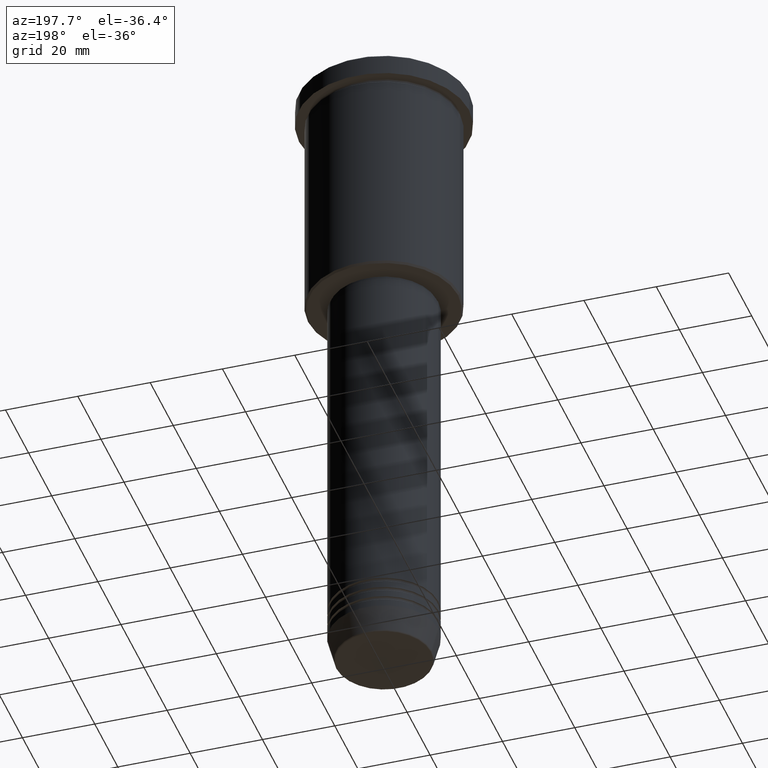
[diagram: clean part render]
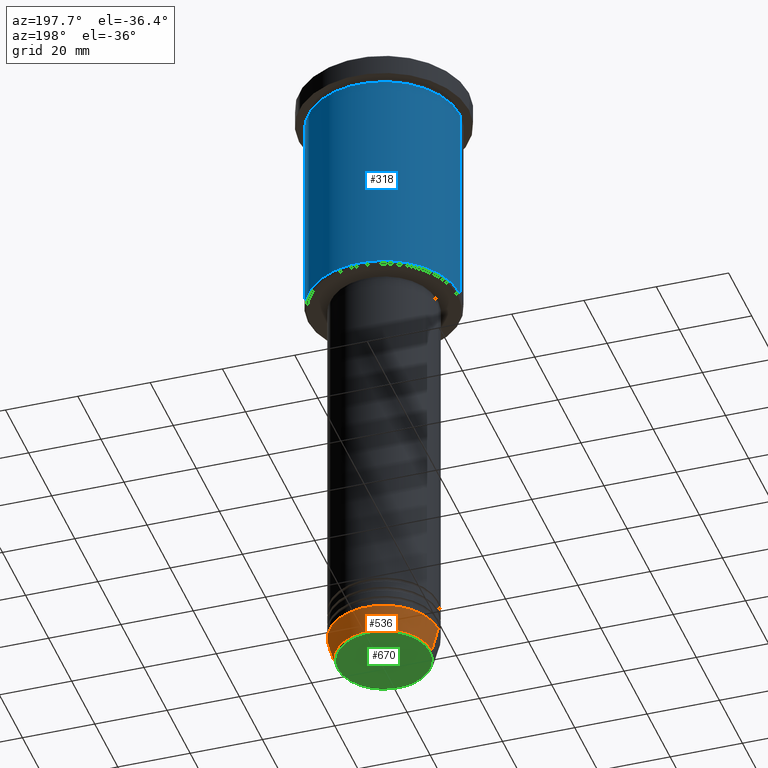
[diagram: same view with three faces highlighted in distinct colors, each labeled with its STEP entity id]
A machine part, auxiliary view with three faces highlighted in distinct colors.
Their STEP definitions:

[orange] entity #536 — the highlighted conical surface has half-angle 15 deg.
#16 = FACE_OUTER_BOUND ( 'NONE', #603, .T. ) ;
#58 = CIRCLE ( 'NONE', #98, 13.22365507213720370 ) ;
#98 = AXIS2_PLACEMENT_3D ( 'NONE', #185, #826, #1093 ) ;
#101 = LINE ( 'NONE', #389, #1067 ) ;
#185 = CARTESIAN_POINT ( 'NONE',  ( 0.000000000000000000, 0.000000000000000000, -180.6294095225512422 ) ) ;
#240 = VERTEX_POINT ( 'NONE', #1046 ) ;
#290 = EDGE_CURVE ( 'NONE', #240, #743, #542, .T. ) ;
#312 = VERTEX_POINT ( 'NONE', #817 ) ;
#325 = AXIS2_PLACEMENT_3D ( 'NONE', #439, #356, #898 ) ;
#356 = DIRECTION ( 'NONE',  ( -0.000000000000000000, -0.000000000000000000, 1.000000000000000000 ) ) ;
#389 = CARTESIAN_POINT ( 'NONE',  ( 15.00000000000000000, 0.000000000000000000, -174.0000000000000284 ) ) ;
#391 = ORIENTED_EDGE ( 'NONE', *, *, #1011, .T. ) ;
#415 = ORIENTED_EDGE ( 'NONE', *, *, #957, .F. ) ;
#439 = CARTESIAN_POINT ( 'NONE',  ( 0.000000000000000000, 0.000000000000000000, -174.0000000000000284 ) ) ;
#441 = CONICAL_SURFACE ( 'NONE', #951, 15.00000000000000000, 0.2617993877991496299 ) ;
#450 = CARTESIAN_POINT ( 'NONE',  ( -15.00000000000000000, 1.836970198721029589E-15, -174.0000000000000284 ) ) ;
#536 = ADVANCED_FACE ( 'NONE', ( #16 ), #441, .T. ) ;
#542 = LINE ( 'NONE', #450, #1005 ) ;
#603 = EDGE_LOOP ( 'NONE', ( #391, #669, #1116, #415 ) ) ;
#642 = DIRECTION ( 'NONE',  ( -0.000000000000000000, -0.000000000000000000, 1.000000000000000000 ) ) ;
#646 = DIRECTION ( 'NONE',  ( 1.000000000000000000, 0.000000000000000000, 0.000000000000000000 ) ) ;
#669 = ORIENTED_EDGE ( 'NONE', *, *, #290, .T. ) ;
#704 = DIRECTION ( 'NONE',  ( -0.2588190451025209615, 3.169619151431767406E-17, 0.9659258262890682012 ) ) ;
#743 = VERTEX_POINT ( 'NONE', #761 ) ;
#761 = CARTESIAN_POINT ( 'NONE',  ( -15.00000000000000000, 1.836970198721029589E-15, -174.0000000000000284 ) ) ;
#780 = VERTEX_POINT ( 'NONE', #801 ) ;
#801 = CARTESIAN_POINT ( 'NONE',  ( 15.00000000000000000, 0.000000000000000000, -174.0000000000000284 ) ) ;
#817 = CARTESIAN_POINT ( 'NONE',  ( 13.22365507213720370, 0.000000000000000000, -180.6294095225512422 ) ) ;
#826 = DIRECTION ( 'NONE',  ( -0.000000000000000000, -0.000000000000000000, 1.000000000000000000 ) ) ;
#838 = EDGE_CURVE ( 'NONE', #780, #743, #919, .T. ) ;
#898 = DIRECTION ( 'NONE',  ( 1.000000000000000000, 0.000000000000000000, 0.000000000000000000 ) ) ;
#919 = CIRCLE ( 'NONE', #325, 15.00000000000000000 ) ;
#928 = DIRECTION ( 'NONE',  ( 0.2588190451025209615, 0.000000000000000000, 0.9659258262890682012 ) ) ;
#951 = AXIS2_PLACEMENT_3D ( 'NONE', #1010, #642, #646 ) ;
#957 = EDGE_CURVE ( 'NONE', #312, #780, #101, .T. ) ;
#1005 = VECTOR ( 'NONE', #704, 1000.000000000000000 ) ;
#1010 = CARTESIAN_POINT ( 'NONE',  ( 0.000000000000000000, 0.000000000000000000, -174.0000000000000284 ) ) ;
#1011 = EDGE_CURVE ( 'NONE', #312, #240, #58, .T. ) ;
#1046 = CARTESIAN_POINT ( 'NONE',  ( -13.22365507213720370, 1.728200442216589175E-15, -180.6294095225512422 ) ) ;
#1067 = VECTOR ( 'NONE', #928, 1000.000000000000000 ) ;
#1093 = DIRECTION ( 'NONE',  ( 1.000000000000000000, 0.000000000000000000, 0.000000000000000000 ) ) ;
#1116 = ORIENTED_EDGE ( 'NONE', *, *, #838, .F. ) ;

[blue] entity #318 — the highlighted cylindrical surface (partial cylindrical patch) has radius 21 mm, axis along (-0, -0, 1).
#36 = VECTOR ( 'NONE', #127, 1000.000000000000000 ) ;
#95 = AXIS2_PLACEMENT_3D ( 'NONE', #1081, #973, #239 ) ;
#96 = AXIS2_PLACEMENT_3D ( 'NONE', #293, #107, #935 ) ;
#105 = CARTESIAN_POINT ( 'NONE',  ( -21.00000000000000000, 2.571758278209441661E-15, -6.999999999999994671 ) ) ;
#107 = DIRECTION ( 'NONE',  ( -0.000000000000000000, -0.000000000000000000, 1.000000000000000000 ) ) ;
#109 = VERTEX_POINT ( 'NONE', #105 ) ;
#127 = DIRECTION ( 'NONE',  ( -0.000000000000000000, -0.000000000000000000, 1.000000000000000000 ) ) ;
#161 = DIRECTION ( 'NONE',  ( -1.000000000000000000, 0.000000000000000000, 0.000000000000000000 ) ) ;
#196 = AXIS2_PLACEMENT_3D ( 'NONE', #352, #245, #161 ) ;
#239 = DIRECTION ( 'NONE',  ( 1.000000000000000000, 0.000000000000000000, 0.000000000000000000 ) ) ;
#245 = DIRECTION ( 'NONE',  ( -0.000000000000000000, -0.000000000000000000, 1.000000000000000000 ) ) ;
#246 = VECTOR ( 'NONE', #1148, 1000.000000000000000 ) ;
#251 = EDGE_CURVE ( 'NONE', #762, #109, #673, .T. ) ;
#253 = VERTEX_POINT ( 'NONE', #496 ) ;
#266 = ORIENTED_EDGE ( 'NONE', *, *, #773, .F. ) ;
#293 = CARTESIAN_POINT ( 'NONE',  ( 0.000000000000000000, 0.000000000000000000, -6.999999999999994671 ) ) ;
#318 = ADVANCED_FACE ( 'NONE', ( #795 ), #1149, .T. ) ;
#352 = CARTESIAN_POINT ( 'NONE',  ( 0.000000000000000000, 0.000000000000000000, -65.49999999999997158 ) ) ;
#381 = EDGE_CURVE ( 'NONE', #974, #762, #790, .T. ) ;
#438 = ORIENTED_EDGE ( 'NONE', *, *, #381, .T. ) ;
#448 = CARTESIAN_POINT ( 'NONE',  ( -21.00000000000000000, 2.571758278209441661E-15, -65.49999999999997158 ) ) ;
#480 = EDGE_CURVE ( 'NONE', #253, #109, #674, .T. ) ;
#496 = CARTESIAN_POINT ( 'NONE',  ( 21.00000000000000000, 0.000000000000000000, -6.999999999999994671 ) ) ;
#545 = EDGE_LOOP ( 'NONE', ( #438, #968, #1068, #266 ) ) ;
#570 = CARTESIAN_POINT ( 'NONE',  ( 21.00000000000000000, 0.000000000000000000, -65.49999999999997158 ) ) ;
#605 = CARTESIAN_POINT ( 'NONE',  ( -21.00000000000000000, 2.571758278209441661E-15, 0.000000000000000000 ) ) ;
#627 = LINE ( 'NONE', #816, #246 ) ;
#673 = LINE ( 'NONE', #605, #36 ) ;
#674 = CIRCLE ( 'NONE', #96, 21.00000000000000000 ) ;
#762 = VERTEX_POINT ( 'NONE', #448 ) ;
#773 = EDGE_CURVE ( 'NONE', #974, #253, #627, .T. ) ;
#790 = CIRCLE ( 'NONE', #196, 21.00000000000000000 ) ;
#795 = FACE_OUTER_BOUND ( 'NONE', #545, .T. ) ;
#816 = CARTESIAN_POINT ( 'NONE',  ( 21.00000000000000000, 0.000000000000000000, 0.000000000000000000 ) ) ;
#935 = DIRECTION ( 'NONE',  ( 1.000000000000000000, 0.000000000000000000, 0.000000000000000000 ) ) ;
#968 = ORIENTED_EDGE ( 'NONE', *, *, #251, .T. ) ;
#973 = DIRECTION ( 'NONE',  ( -0.000000000000000000, -0.000000000000000000, 1.000000000000000000 ) ) ;
#974 = VERTEX_POINT ( 'NONE', #570 ) ;
#1068 = ORIENTED_EDGE ( 'NONE', *, *, #480, .F. ) ;
#1081 = CARTESIAN_POINT ( 'NONE',  ( 0.000000000000000000, 0.000000000000000000, 0.000000000000000000 ) ) ;
#1148 = DIRECTION ( 'NONE',  ( -0.000000000000000000, -0.000000000000000000, 1.000000000000000000 ) ) ;
#1149 = CYLINDRICAL_SURFACE ( 'NONE', #95, 21.00000000000000000 ) ;

[green] entity #670 — the highlighted planar face has unit normal (0, -0, 1).
#19 = CIRCLE ( 'NONE', #422, 12.74069215899266538 ) ;
#45 = DIRECTION ( 'NONE',  ( 0.000000000000000000, -0.000000000000000000, 1.000000000000000000 ) ) ;
#118 = DIRECTION ( 'NONE',  ( 1.000000000000000000, 0.000000000000000000, 0.000000000000000000 ) ) ;
#133 = VERTEX_POINT ( 'NONE', #846 ) ;
#146 = PLANE ( 'NONE',  #863 ) ;
#178 = AXIS2_PLACEMENT_3D ( 'NONE', #417, #574, #118 ) ;
#186 = EDGE_CURVE ( 'NONE', #607, #133, #19, .T. ) ;
#217 = CARTESIAN_POINT ( 'NONE',  ( 0.000000000000000000, 0.000000000000000000, -181.0000000000000000 ) ) ;
#223 = DIRECTION ( 'NONE',  ( 0.000000000000000000, 0.000000000000000000, -1.000000000000000000 ) ) ;
#313 = ORIENTED_EDGE ( 'NONE', *, *, #186, .T. ) ;
#414 = CARTESIAN_POINT ( 'NONE',  ( 0.000000000000000000, 0.000000000000000000, -181.0000000000000000 ) ) ;
#417 = CARTESIAN_POINT ( 'NONE',  ( 0.000000000000000000, 0.000000000000000000, -181.0000000000000000 ) ) ;
#422 = AXIS2_PLACEMENT_3D ( 'NONE', #414, #223, #589 ) ;
#574 = DIRECTION ( 'NONE',  ( 0.000000000000000000, 0.000000000000000000, -1.000000000000000000 ) ) ;
#589 = DIRECTION ( 'NONE',  ( 1.000000000000000000, 0.000000000000000000, 0.000000000000000000 ) ) ;
#607 = VERTEX_POINT ( 'NONE', #1127 ) ;
#628 = EDGE_LOOP ( 'NONE', ( #313, #1062 ) ) ;
#670 = ADVANCED_FACE ( 'NONE', ( #1052 ), #146, .F. ) ;
#697 = CIRCLE ( 'NONE', #178, 12.74069215899266538 ) ;
#846 = CARTESIAN_POINT ( 'NONE',  ( -12.74069215899266538, 1.589857736427681824E-15, -181.0000000000000000 ) ) ;
#863 = AXIS2_PLACEMENT_3D ( 'NONE', #217, #45, #958 ) ;
#958 = DIRECTION ( 'NONE',  ( 1.000000000000000000, 0.000000000000000000, 0.000000000000000000 ) ) ;
#1052 = FACE_OUTER_BOUND ( 'NONE', #628, .T. ) ;
#1057 = EDGE_CURVE ( 'NONE', #133, #607, #697, .T. ) ;
#1062 = ORIENTED_EDGE ( 'NONE', *, *, #1057, .T. ) ;
#1127 = CARTESIAN_POINT ( 'NONE',  ( 12.74069215899266538, 0.000000000000000000, -181.0000000000000000 ) ) ;